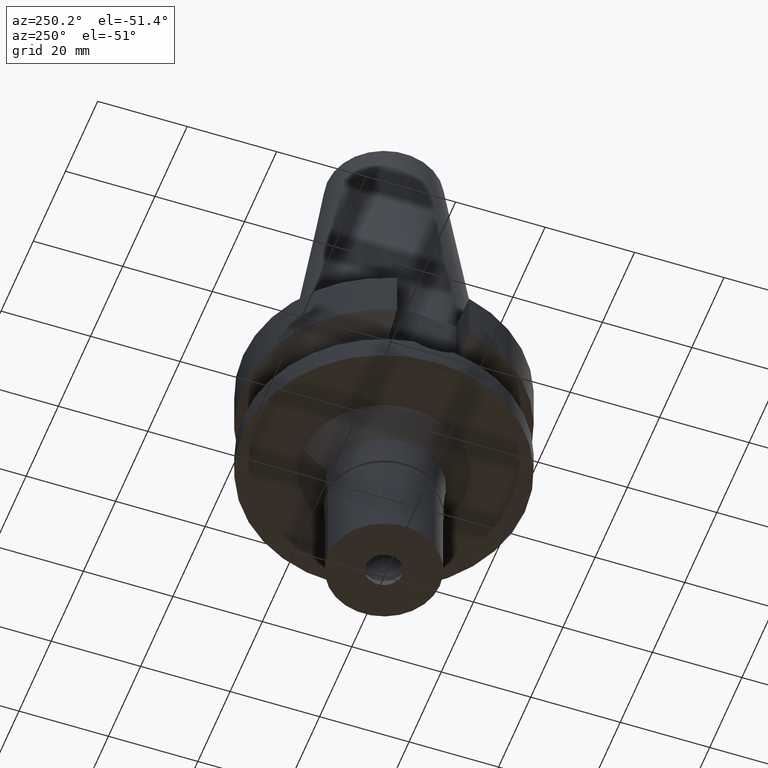
[diagram: clean part render]
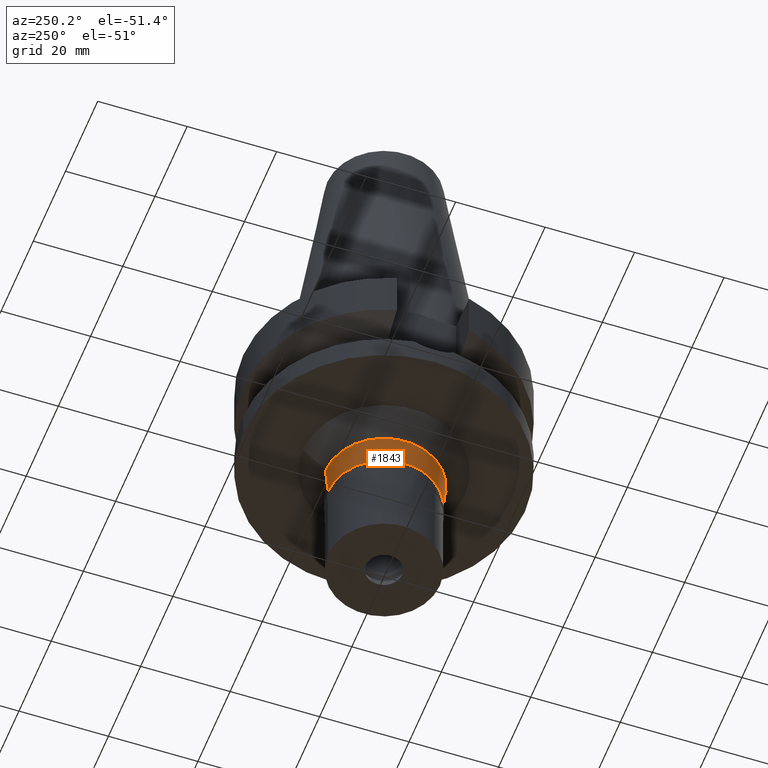
[diagram: same view with one face highlighted and labeled with its STEP entity id]
A machine part, auxiliary view. The second image highlights one B-rep face of the part: STEP entity #1843.
In plain terms, the highlighted conical surface has half-angle 5 deg.
Its self-contained STEP definition (entity closure, byte-faithful):
#129 = VERTEX_POINT ( 'NONE', #1636 ) ;
#142 = CIRCLE ( 'NONE', #894, 12.50000000000000000 ) ;
#160 = VERTEX_POINT ( 'NONE', #2875 ) ;
#372 = CARTESIAN_POINT ( 'NONE',  ( 0.0000000000000000000, 0.0000000000000000000, -35.35000000000000142 ) ) ;
#375 = ORIENTED_EDGE ( 'NONE', *, *, #2087, .T. ) ;
#534 = AXIS2_PLACEMENT_3D ( 'NONE', #1628, #1600, #2539 ) ;
#581 = EDGE_LOOP ( 'NONE', ( #2882, #1401, #375, #2215 ) ) ;
#583 = AXIS2_PLACEMENT_3D ( 'NONE', #372, #1309, #2694 ) ;
#685 = CIRCLE ( 'NONE', #534, 13.08617404561999997 ) ;
#699 = CARTESIAN_POINT ( 'NONE',  ( 0.0000000000000000000, 0.0000000000000000000, -38.69999999999999574 ) ) ;
#801 = CARTESIAN_POINT ( 'NONE',  ( 0.0000000000000000000, -13.08617404561999997, -32.00000000000000000 ) ) ;
#843 = EDGE_CURVE ( 'NONE', #2381, #160, #1235, .T. ) ;
#894 = AXIS2_PLACEMENT_3D ( 'NONE', #699, #1156, #2568 ) ;
#1066 = VERTEX_POINT ( 'NONE', #1289 ) ;
#1156 = DIRECTION ( 'NONE',  ( 0.0000000000000000000, 0.0000000000000000000, 1.000000000000000000 ) ) ;
#1205 = CARTESIAN_POINT ( 'NONE',  ( 0.0000000000000000000, 13.08617404561999997, -32.00000000000000000 ) ) ;
#1235 = LINE ( 'NONE', #2681, #2594 ) ;
#1289 = CARTESIAN_POINT ( 'NONE',  ( 0.0000000000000000000, 12.50000000000000000, -38.69999999999999574 ) ) ;
#1309 = DIRECTION ( 'NONE',  ( 0.0000000000000000000, 0.0000000000000000000, 1.000000000000000000 ) ) ;
#1401 = ORIENTED_EDGE ( 'NONE', *, *, #843, .F. ) ;
#1431 = DIRECTION ( 'NONE',  ( 0.0000000000000000000, -0.08715574274742697580, -0.9961946980917657513 ) ) ;
#1457 = LINE ( 'NONE', #1205, #1464 ) ;
#1464 = VECTOR ( 'NONE', #1431, 1000.000000000000114 ) ;
#1465 = CONICAL_SURFACE ( 'NONE', #583, 12.79308702281000087, 0.08726646259969973729 ) ;
#1600 = DIRECTION ( 'NONE',  ( 0.0000000000000000000, 0.0000000000000000000, -1.000000000000000000 ) ) ;
#1628 = CARTESIAN_POINT ( 'NONE',  ( 0.0000000000000000000, 0.0000000000000000000, -32.00000000000000000 ) ) ;
#1636 = CARTESIAN_POINT ( 'NONE',  ( 0.0000000000000000000, 13.08617404561999997, -32.00000000000000000 ) ) ;
#1843 = ADVANCED_FACE ( 'NONE', ( #2462 ), #1465, .T. ) ;
#2019 = EDGE_CURVE ( 'NONE', #1066, #160, #142, .T. ) ;
#2087 = EDGE_CURVE ( 'NONE', #2381, #129, #685, .T. ) ;
#2215 = ORIENTED_EDGE ( 'NONE', *, *, #2917, .T. ) ;
#2381 = VERTEX_POINT ( 'NONE', #801 ) ;
#2462 = FACE_OUTER_BOUND ( 'NONE', #581, .T. ) ;
#2539 = DIRECTION ( 'NONE',  ( 0.0000000000000000000, -1.000000000000000000, 0.0000000000000000000 ) ) ;
#2568 = DIRECTION ( 'NONE',  ( 0.0000000000000000000, 1.000000000000000000, 0.0000000000000000000 ) ) ;
#2594 = VECTOR ( 'NONE', #2666, 1000.000000000000114 ) ;
#2666 = DIRECTION ( 'NONE',  ( 0.0000000000000000000, 0.08715574274742697580, -0.9961946980917657513 ) ) ;
#2681 = CARTESIAN_POINT ( 'NONE',  ( 0.0000000000000000000, -13.08617404561999997, -32.00000000000000000 ) ) ;
#2694 = DIRECTION ( 'NONE',  ( 0.0000000000000000000, 1.000000000000000000, 0.0000000000000000000 ) ) ;
#2875 = CARTESIAN_POINT ( 'NONE',  ( 0.0000000000000000000, -12.50000000000000000, -38.69999999999999574 ) ) ;
#2882 = ORIENTED_EDGE ( 'NONE', *, *, #2019, .T. ) ;
#2917 = EDGE_CURVE ( 'NONE', #129, #1066, #1457, .T. ) ;